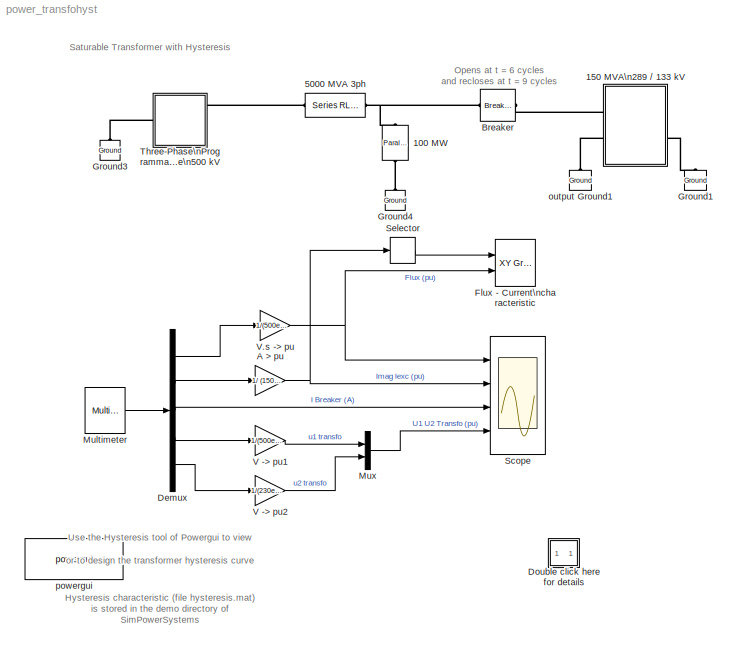
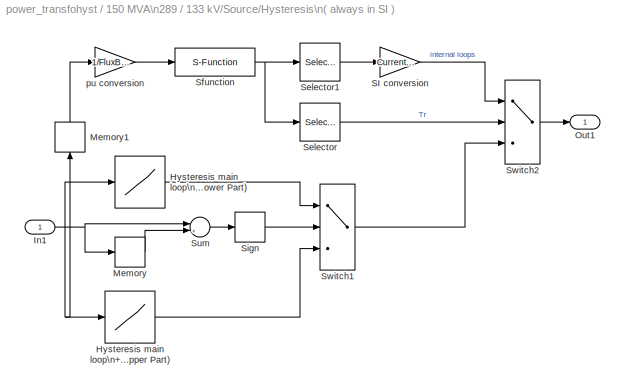
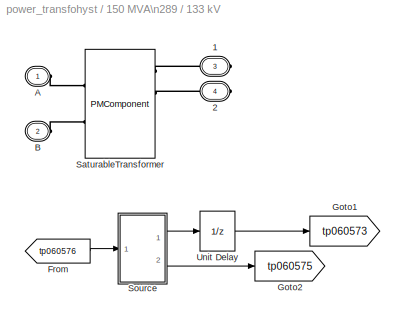
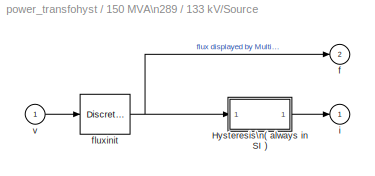
MODEL power_transfohyst
KIND model
BLOCK [Reference] 100 MW  REF=powerlib/Elements/Parallel RLC Load
  ActivePower = 100e6
  AttributesFormatString = \\n
  CapacitivePower = 0
  InductivePower = 0
  LConnTagsString = a
  LeftPortType = p1
  Measurements = None
  NominalFrequency = 60
  NominalVoltage = 500e3/sqrt(3)
  PhysicalDomain = powersysdomain
  Ports = [0, 0, 0, 0, 0, 1, 1]
  RConnTagsString = __new0
  RightPortType = p1
  SourceBlock = powerlib/Elements/Parallel RLC Load
  SourceType = Parallel RLC Load
  SubClassName = unknown
BLOCK [SubSystem] 150 MVA\n289 // 133 kV
  AttributesFormatString = \\n
  CopyFcn = powericon('psbloadfunction',gcb,'gotogotofrom','UpdateGotoTag');
  LoadFcn = try                                  \nset_param(gcb,'Linkstatus','restore')\nend
  MaskCallbackString = |||powericon('SaturableTransformerCback',gcb);||||powericon('SaturableTransformerCback',gcb);||||
  MaskDescription = Three windings linear transformer.
  MaskDisplay = plot(-85,-100,85,100,p1,p2,p3,p4,p5,p6,p7,p8);\ntext(-85,0, '1');\ntext(70,t1, '2');\ntext(70,-50, mot);
  MaskEnableString = on,on,on,on,on,on,on,on,on,on,on,on
  MaskHelp = web(psbhelp)
  MaskIconFrame = off
  MaskIconOpaque = on
  MaskIconRotate = port
  MaskIconUnits = autoscale
  MaskInitialization = block = gcb;\n[p1,p2,p3,p4,p5,p6,p7,p8,mot,t1]=powericon('SaturableTransformerIcon',ThreeWindings);\n%\npowerbase = NominalPower(1);\nwbase = 2*pi*NominalPower(2);\nvoltbase = Winding1(1);\nBaseCurrent = (powerbase/voltbase)*sqrt(2);\nBaseFlux = (voltbase/wbase)*sqrt(2);\nSaturation = [-Saturation(size(Saturation,1):-1:2,:) ; Saturation(2:size(Saturation,1),:)];\nSaturationCurrent = [Saturation(:,...<+688ch>
  MaskPromptString = Nominal power and frequency [Pn(VA) fn(Hz)]:|Winding 1 parameters [V1(Vrms) R1(pu) L1(pu)]:|Winding 2 parameters [V2(Vrms) R2(pu) L2(pu)]:|Three windings transformer|Winding 3 parameters [V3(Vrms) R3(pu) L3(pu)]:|Saturation characteristic [i1(pu) phi1(pu); i2 phi2; ...]:|Core loss resistance and initial flux [Rm(pu) phi0(pu)] or [Rm(pu)] only:|Simulate hysteresis|Hysteresis Data Mat file |Measurem...<+61ch>
  MaskSelfModifiable = on
  MaskStyleString = edit,edit,edit,checkbox,edit,edit,edit,checkbox,edit,popup(None|Winding voltages|Winding currents|Flux and excitation current ( Imag + IRm )|Flux and magnetization current ( Imag )|All measurements (V I Flux)),edit,edit
  MaskTabNameString = ,,,,,,,,,,,
  MaskToolTipString = on,on,on,on,on,on,on,on,on,on,on,on
  MaskTunableValueString = off,off,off,off,off,off,off,off,off,off,on,on
  MaskType = Saturable Transformer
  MaskValueString = [ 150e6 60 ]|[ 500e3/sqrt(3) 0.002 0.08 ]| [ 230e3/sqrt(3) 0.002 0.08]  |off| [ 230e3/sqrt(3) 0.002 0.08]  |[0 0;  0.0 0.85; 0.015 1.2;  0.03 1.35; 0.06 1.5; 0.09 1.56; 0.12 1.572]|[200 0]|on|'hysteresis'|All measurements (V I Flux)|-51.8986800285954|1
  MaskVarAliasString = ,,,,,,,,,,,
  MaskVariables = NominalPower=@1;Winding1=@2;Winding2=@3;ThreeWindings=@4;Winding3=@5;Saturation=@6;CoreLoss=@7;Hysteresis=@8;DataFile=@9;Measurements=@10;InitialFlux=@11;TransfoNumber=@12;
  MaskVisibilityString = on,on,on,on,off,off,on,on,on,on,off,off
  MinAlgLoopOccurrences = off
  Ports = [0, 0, 0, 0, 0, 2, 2]
  RTWSystemCode = Auto
  TreatAsAtomicUnit = off
BLOCK [PMIOPort] 150 MVA\n289 // 133 kV/1
  Port = 3
  Side = Right
BLOCK [PMIOPort] 150 MVA\n289 // 133 kV/2
  Port = 4
  Side = Right
BLOCK [PMIOPort] 150 MVA\n289 // 133 kV/A
  Port = 1
  Side = Left
BLOCK [PMIOPort] 150 MVA\n289 // 133 kV/B
  Port = 2
  Side = Left
BLOCK [From] 150 MVA\n289 // 133 kV/From
  CloseFcn = tagdialog Close
  DialogController = Simulink.DDGSource
  GotoTag = tp060576
BLOCK [Goto] 150 MVA\n289 // 133 kV/Goto1
  DialogController = Simulink.DDGSource
  GotoTag = tp060573
  TagVisibility = global
BLOCK [Goto] 150 MVA\n289 // 133 kV/Goto2
  DialogController = Simulink.DDGSource
  GotoTag = tp060575
  TagVisibility = global
BLOCK [PMComponent] 150 MVA\n289 // 133 kV/SaturableTransformer
  LConnTagsString = A|B
  LeftPortType = p1
  MaskIconFrame = on
  MaskIconOpaque = on
  MaskIconRotate = none
  MaskIconUnits = autoscale
  MaskType = InnerPowersysBlock
  PhysicalDomain = powersysdomain
  Ports = [0, 0, 0, 0, 0, 2, 4]
  RConnTagsString = 1|2|3|4
  RightPortType = p1
BLOCK [SubSystem] 150 MVA\n289 // 133 kV/Source
  AncestorBlock = powerlib_models/Discrete/hysteresis_transformer
  MaskCallbackString = |||||||||||||
  MaskEnableString = on,on,on,on,on,on,on,on,on,on,on,on,on,on
  MaskIconFrame = on
  MaskIconOpaque = on
  MaskIconRotate = none
  MaskIconUnits = autoscale
  MaskPromptString = SaturationFlux|SaturationCurrent|Initial Flux|FluxBase|CurrentBase|Tolerances|HT|UpperFlux|LowerFlux|Current|InitialSlope|Transfo Number|Ts|sfun_InitialFlux
  MaskStyleString = edit,edit,edit,edit,edit,edit,edit,edit,edit,edit,edit,edit,edit,edit
  MaskTabNameString = ,,,,,,,,,,,,,
  MaskToolTipString = on,on,on,on,on,on,on,on,on,on,on,on,on,on
  MaskTunableValueString = on,on,on,on,on,on,on,on,on,on,on,on,on,on
  MaskValueString = SaturationFlux|SaturationCurrent|InitialFlux|BaseFlux|BaseCurrent|Tolerances|HT|UpperFlux|LowerFlux|Current|InitialSlope|TransfoNumber|Ts|sfun_InitialFlux
  MaskVarAliasString = ,,,,,,,,,,,,,
  MaskVariables = SaturationFlux=@1;SaturationCurrent=@2;InitialFlux=@3;FluxBase=@4;CurrentBase=@5;Tolerances=@6;HT=@7;UpperFlux=@8;LowerFlux=@9;Current=@10;InitialSlope=@11;TransfoNumber=@12;Ts=@13;sfun_InitialFlux=@14;
  MaskVisibilityString = on,on,on,on,on,on,on,on,on,on,on,on,on,on
  MinAlgLoopOccurrences = off
  Ports = [1, 2]
  RTWSystemCode = Auto
  TreatAsAtomicUnit = off
BLOCK [SubSystem] 150 MVA\n289 // 133 kV/Source/Hysteresis\n( always in SI )
  MinAlgLoopOccurrences = off
  Ports = [1, 1]
  RTWSystemCode = Auto
  TreatAsAtomicUnit = off
BLOCK [Lookup] 150 MVA\n289 // 133 kV/Source/Hysteresis\n( always in SI )/Hysteresis main loop\n+\nSaturation.\n(Upper Part)
  DialogController = Simulink.DDGSource
  InputValues = UpperFlux
  OutputValues = Current
BLOCK [Lookup] 150 MVA\n289 // 133 kV/Source/Hysteresis\n( always in SI )/Hysteresis main loop\n+\nSaturation\n(Lower Part)
  DialogController = Simulink.DDGSource
  InputValues = LowerFlux
  OutputValues = Current
BLOCK [Inport] 150 MVA\n289 // 133 kV/Source/Hysteresis\n( always in SI )/In1
  IconDisplay = Port number
  LatchInput = off
  Port = 1
BLOCK [Memory] 150 MVA\n289 // 133 kV/Source/Hysteresis\n( always in SI )/Memory
BLOCK [Memory] 150 MVA\n289 // 133 kV/Source/Hysteresis\n( always in SI )/Memory1
BLOCK [Outport] 150 MVA\n289 // 133 kV/Source/Hysteresis\n( always in SI )/Out1
  BusOutputAsStruct = off
  IconDisplay = Port number
BLOCK [Gain] 150 MVA\n289 // 133 kV/Source/Hysteresis\n( always in SI )/SI conversion
  Gain = CurrentBase
BLOCK [Selector] 150 MVA\n289 // 133 kV/Source/Hysteresis\n( always in SI )/Selector
  Elements = 2
  InputPortWidth = 2
  Ports = [1, 1]
BLOCK [Selector] 150 MVA\n289 // 133 kV/Source/Hysteresis\n( always in SI )/Selector1
  InputPortWidth = 2
  Ports = [1, 1]
BLOCK [S-Function] 150 MVA\n289 // 133 kV/Source/Hysteresis\n( always in SI )/Sfunction
  FunctionName = sfun_hysteresis
  Parameters = sfun_InitialFlux,HT,TransfoNumber,Ts,Tolerances,InitialSlope
  Ports = [1, 1]
BLOCK [Signum] 150 MVA\n289 // 133 kV/Source/Hysteresis\n( always in SI )/Sign
BLOCK [Sum] 150 MVA\n289 // 133 kV/Source/Hysteresis\n( always in SI )/Sum
  IconShape = round
  Inputs = |+-
  Ports = [2, 1]
BLOCK [Switch] 150 MVA\n289 // 133 kV/Source/Hysteresis\n( always in SI )/Switch1
  SaturateOnIntegerOverflow = off
BLOCK [Switch] 150 MVA\n289 // 133 kV/Source/Hysteresis\n( always in SI )/Switch2
  SaturateOnIntegerOverflow = off
  Threshold = 1.5
BLOCK [Gain] 150 MVA\n289 // 133 kV/Source/Hysteresis\n( always in SI )/pu conversion
  Gain = 1/FluxBase
BLOCK [Outport] 150 MVA\n289 // 133 kV/Source/f
  BusOutputAsStruct = off
  IconDisplay = Port number
  InitialOutput = 0
  Port = 2
BLOCK [DiscreteIntegrator] 150 MVA\n289 // 133 kV/Source/fluxinit
  ExternalReset = none
  ICPrevOutput = DiscIntNeverNeededParam
  ICPrevScaledInput = DiscIntNeverNeededParam
  InitialCondition = InitialFlux
  InitialConditionSource = internal
  IntegratorMethod = Integration: Backward Euler
  Ports = [1, 1]
  SampleTime = Ts
BLOCK [Outport] 150 MVA\n289 // 133 kV/Source/i
  BusOutputAsStruct = off
  IconDisplay = Port number
  InitialOutput = 0
BLOCK [Inport] 150 MVA\n289 // 133 kV/Source/v
  IconDisplay = Port number
  LatchInput = off
  Port = 1
BLOCK [UnitDelay] 150 MVA\n289 // 133 kV/Unit Delay
  SampleTime = Ts
BLOCK [Reference] 5000 MVA 3ph  REF=powerlib/Elements/Series RLC Branch
  AttributesFormatString = \\n
  Capacitance = inf
  Inductance = 500e3^2/5000e6/(2*pi*60)
  LConnTagsString = __new0
  LeftPortType = p1
  Measurements = Branch current
  PhysicalDomain = powersysdomain
  Ports = [0, 0, 0, 0, 0, 1, 1]
  RConnTagsString = __new0
  Resistance = 500e3^2/5000e6/10
  RightPortType = p1
  SourceBlock = powerlib/Elements/Series RLC Branch
  SourceType = Series RLC Branch
  SubClassName = unknown
BLOCK [Gain] A > pu
  Gain = 1/ (150e6/(500e3/sqrt(3))*sqrt(2))
BLOCK [Reference] Breaker  REF=powerlib/Elements/Breaker
  AttributesFormatString = \\n
  BreakerResistance = 0.01
  External = off
  InitialState = 1
  Measurements = None
  Ports = [0, 0, 0, 0, 0, 1, 1]
  ShowPortLabels = on
  SnubberCapacitance = inf
  SnubberResistance = 1e7
  SourceBlock = powerlib/Elements/Breaker
  SourceType = Breaker
  SwitchingTimes = [ 6/60  9/60]
BLOCK [Demux] Demux
  Outputs = [1 2 1  1  1]
  Ports = [1, 5]
BLOCK [SubSystem] Double click here for details
  MaskDisplay = disp('?')
  MaskIconFrame = on
  MaskIconOpaque = on
  MaskIconRotate = none
  MaskIconUnits = autoscale
  MinAlgLoopOccurrences = off
  Ports = []
  RTWSystemCode = Auto
  TreatAsAtomicUnit = off
BLOCK [Reference] Flux - Current\ncharacteristic  REF=simulink/Sinks/XY Graph
  Ports = [2]
  ShowPortLabels = on
  SourceBlock = simulink/Sinks/XY Graph
  SourceType = XY scope.
  st = -1
  xmax = 0.05
  xmin = -0.05
  ymax = 1.5
  ymin = -1.5
BLOCK [Reference] Ground1  REF=powerlib/Elements/Ground
  AttributesFormatString = \\n
  LConnTagsString = a
  LeftPortType = p1
  PhysicalDomain = powersysdomain
  Ports = [0, 0, 0, 0, 0, 1]
  RightPortType = p1
  SourceBlock = powerlib/Elements/Ground
  SourceType = Ground
  SubClassName = unknown
BLOCK [Reference] Ground3  REF=powerlib/Elements/Ground
  AttributesFormatString = \\n
  LConnTagsString = a
  LeftPortType = p1
  PhysicalDomain = powersysdomain
  Ports = [0, 0, 0, 0, 0, 1]
  RightPortType = p1
  SourceBlock = powerlib/Elements/Ground
  SourceType = Ground
  SubClassName = unknown
BLOCK [Reference] Ground4  REF=powerlib/Elements/Ground
  AttributesFormatString = \\n
  LConnTagsString = a
  LeftPortType = p1
  PhysicalDomain = powersysdomain
  Ports = [0, 0, 0, 0, 0, 1]
  RightPortType = p1
  SourceBlock = powerlib/Elements/Ground
  SourceType = Ground
  SubClassName = unknown
BLOCK [Reference] Multimeter  REF=powerlib/Measurements/Multimeter
  AttributesFormatString = \\n
  AxesSetting = [0,0.1,-100,100]
  Display = 0
  Gain = [1 1 1 1 1 1]
  L = 8
  OutputType = Magnitude
  PSBOutputType = 1
  PSBequivalent = 1
  PhasorSimulation = off
  Ports = [0, 1]
  SavedBlockNames = -11
  ShowPortLabels = on
  SourceBlock = powerlib/Measurements/Multimeter
  SourceType = MultimeterPSB
  Tag = PoWeRsYsTeMmEaSuReMeNt
  sel = [8 7 6 4 1 2]
  yselected = {'Flux: 150 MVA 289 // 133 kV','Imag: 150 MVA 289 // 133 kV','Iexc: 150 MVA 289 // 133 kV','Iw1: 150 MVA 289 // 133 kV','Uw1: 150 MVA 289 // 133 kV','Uw2: 150 MVA 289 // 133 kV'};
BLOCK [Mux] Mux
  DisplayOption = bar
  Inputs = 2
  Ports = [2, 1]
BLOCK [Scope] Scope
  DataFormat = Array
  DeleteFcn = simscope BlockIsBeingDestroyed
  LimitDataPoints = off
  NumInputPorts = 4
  Ports = [4]
  PostSaveFcn = simscope Save
  SaveName = ScopeData1
  TimeRange = 0.14
  YMax = 2~0.0178204~600~2
  YMin = -2~-0.0153499~-200~-2
  ZoomMode = yonly
BLOCK [Selector] Selector
  InputPortWidth = 2
  Ports = [1, 1]
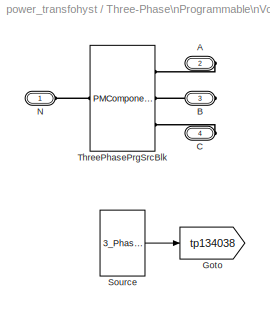
BLOCK [SubSystem] Three-Phase\nProgrammable\nVoltage Source\n500 kV
  AncestorBlock = powerlib/Electrical\nSources/Three-Phase\nProgrammable\nVoltage Source
  CopyFcn = powericon('psbloadfunction',gcb,'goto','UpdateGotoTag');
  MaskCallbackString = |powericon('ProgrammableVoltageSourceCback',gcb);|powericon('ProgrammableVoltageSourceCback',gcb);|||||||||powericon('ProgrammableVoltageSourceCback',gcb);|||
  MaskDescription = This block implements a three-phase zero-impedance voltage source. The common node (neutral) of the three sources is accessible via input 1 (N) of the block. Time variation for the amplitude, phase and frequency of the fundamental can be pre-programmed. In addition, two harmonics can be surimposed on the fundamental.\n\nNote: For  \"Phasor simulation\" , frequency variation and harmonic injection ...<+122ch>
  MaskDisplay = plot(-80,-50,80,50,[0,9,18,24,29,30,29,24,18,9,0,-9,-18,-24,-29,-30,-29,-24,-18,-9,0],[30,29,24,18,9,0,-9,-18,-24,-29,-30,-29,-24,-18,-9,0,9,18,24,29,30],[-50 -30],[0 0],[50,30],[0 0],[45 35 40 40 40],[15 15 15 20 10],[1 2 3 4 5 6 7 8 9 10 11 12 13 14 15 16 17 18 19 20 21].*1.5-15,[0,9,18,24,29,30,29,24,18,9,0,-9,-18,-24,-29,-30,-29,-24,-18,-9,0]./2.4)\n
  MaskEnableString = on,on,on,on,on,on,on,on,on,on,on,on,on,on,on
  MaskHelp = web(psbhelp)
  MaskIconFrame = on
  MaskIconOpaque = off
  MaskIconRotate = port
  MaskIconUnits = autoscale
  MaskInitialization = block=gcb;\n% Extra variable:\nSinglePhase=0;\n\n% Conversion of pos. seq.amplitude from Ph-Ph rms voltage to Phase-gnd peak\nMagnitudeVps = PositiveSequence(1)*sqrt(2/3);\nPhaseVps = PositiveSequence(2);\nFreqVps = PositiveSequence(3);\n\n% Conversion of harmonic amplitudes from pu to Phase-gnd peak volt\nHarmonicA(2) = HarmonicA(2)*MagnitudeVps;\nHarmonicB(2) = HarmonicB(2)*MagnitudeVps;\n\n% Co...<+1093ch>
  MaskPromptString = Positive-sequence: [ Amplitude(Vrms Ph-Ph)  Phase(deg.)   Freq. (Hz) ]|Time variation of:|Type of variation:|Step magnitude (pu, Hz or deg.):|Rate of change (pu/s, Hz/s or deg/s):|Amplitude of the modulation (pu, Hz or deg.):|Frequency of the modulation(Hz):|Variation timing (s) : [ Start   End ]|Variation on phase A only|Amplitude values (pu):|Time values:|Fundamental and/or Harmonic generation:|...<+156ch>
  MaskSelfModifiable = on
  MaskStyleString = edit,popup(None|Amplitude|Phase|Frequency),popup(Step|Ramp|Modulation|Table of time-amplitude pairs),edit,edit,edit,edit,edit,checkbox,edit,edit,checkbox,edit,edit,edit
  MaskTabNameString = ,,,,,,,,,,,,,,
  MaskToolTipString = on,on,on,on,on,on,on,on,on,on,on,on,on,on,on
  MaskTunableValueString = on,on,on,on,on,on,on,on,on,on,on,on,on,on,on
  MaskType = Three-Phase Programmable Voltage Source
  MaskValueString = [0.8*500e3  90  60]|Amplitude|Step|0.375|10|0.3|2|[0.05 1]|off|[1 0.8 1.2 1.0]|[0 0.1 0.15 0.2]|off|[3 0.2 -25 0]|[2 0.15 35 2]|[0.05  3]
  MaskVarAliasString = ,,,,,,,,,,,,,,
  MaskVariables = PositiveSequence=@1;VariationEntity=@2;VariationType=@3;VariationStep=@4;VariationRate=@5;VariationMagnitude=@6;VariationFrequency=@7;VariationTiming=@8;VariationPhaseA=@9;Amplitudes=@10;TimeValues=@11;HarmonicGeneration=@12;HarmonicA=@13;HarmonicB=@14;Timing=@15;
  MaskVisibilityString = on,on,on,on,off,off,off,on,off,off,off,on,off,off,off
  MinAlgLoopOccurrences = off
  Ports = [0, 0, 0, 0, 0, 1, 3]
  RTWSystemCode = Auto
  TreatAsAtomicUnit = off
BLOCK [PMIOPort] Three-Phase\nProgrammable\nVoltage Source\n500 kV/A
  Port = 2
  Side = Right
BLOCK [PMIOPort] Three-Phase\nProgrammable\nVoltage Source\n500 kV/B
  Port = 3
  Side = Right
BLOCK [PMIOPort] Three-Phase\nProgrammable\nVoltage Source\n500 kV/C
  Port = 4
  Side = Right
BLOCK [Goto] Three-Phase\nProgrammable\nVoltage Source\n500 kV/Goto
  DialogController = Simulink.DDGSource
  GotoTag = tp134038
  TagVisibility = global
BLOCK [PMIOPort] Three-Phase\nProgrammable\nVoltage Source\n500 kV/N
  Port = 1
  Side = Left
BLOCK [Reference] Three-Phase\nProgrammable\nVoltage Source\n500 kV/Source  REF=powerlib_models/Discrete/3_Phase_Prog_Source
  DataTypeOverride = UseLocalSettings
  MinMaxOverflowLogging = UseLocalSettings
  Permissions = ReadWrite
  Ports = [0, 1]
  RTWFcnNameOpts = Auto
  RTWFileNameOpts = Auto
  RTWSystemCode = Auto
  ShowPortLabels = on
  SimViewingDevice = off
  SourceBlock = powerlib_models/Discrete/3_Phase_Prog_Source
  SourceType = SubSystem
  TreatAsAtomicUnit = off
BLOCK [PMComponent] Three-Phase\nProgrammable\nVoltage Source\n500 kV/ThreePhasePrgSrcBlk
  LConnTagsString = N
  LeftPortType = p1
  MaskIconFrame = on
  MaskIconOpaque = on
  MaskIconRotate = none
  MaskIconUnits = autoscale
  MaskType = InnerPowersysBlock
  PhysicalDomain = powersysdomain
  Ports = [0, 0, 0, 0, 0, 1, 3]
  RConnTagsString = A|B|C
  RightPortType = p1
BLOCK [Gain] V -> pu1
  Gain = 1/(500e3/sqrt(3)*sqrt(2))
BLOCK [Gain] V -> pu2
  Gain = 1/(230e3/sqrt(3)*sqrt(2))
BLOCK [Gain] V.s -> pu
  Gain = 1/(500e3/sqrt(3)*sqrt(2)/(2*pi*60))
BLOCK [Reference] output Ground1  REF=powerlib/Elements/Ground
  AttributesFormatString = \\n
  LConnTagsString = a
  LeftPortType = p1
  PhysicalDomain = powersysdomain
  Ports = [0, 0, 0, 0, 0, 1]
  RightPortType = p1
  SourceBlock = powerlib/Elements/Ground
  SourceType = Ground
  SubClassName = unknown
BLOCK [Reference] powergui  REF=powerlib/powergui
  DisplayStyle = off
  Frange = [0:2:500]
  FreqAxis = off
  MaxFrequency = 1000
  Ports = []
  Priority = 2
  RmsSteady = 1
  ShowPortLabels = on
  SourceBlock = powerlib/powergui
  SourceType = PSB option menu block
  StartTime = 0.0
  Ts = 25e-6
  Xlog = on
  Ylog = off
  ZoomFFT = on
  cycles = 1
  display = off
  echomessages = off
  frequency = 60
  frequencyindice = 1
  frequencyindicesteady = 1
  fundamental = 60
  methode = off
  save = off
  variable = ZData
ANNOTATION (root): Hysteresis characteristic (file hysteresis.mat) \nis stored in the demo directory of \nSimPowerSystems
ANNOTATION (root): Opens at t = 6 cycles\nand recloses at t = 9 cycles\n
ANNOTATION (root): Saturable Transformer with Hysteresis
ANNOTATION (root): Use the Hysteresis tool of Powergui to view\nor to design the transformer hysteresis curve
ANNOTATION Double click here for details: 1) Simulation of saturation with hysteresis
ANNOTATION Double click here for details: 2) Simulation of saturation with a piecewise nonlinear characteristic
ANNOTATION Double click here for details: At first zero crossing after the breaker opening order, the current is interrupted, and a flux of 0.84 pu stays trapped in the transformer core.
ANNOTATION Double click here for details: Circuit Description
ANNOTATION Double click here for details: Demonstration
ANNOTATION Double click here for details: From 0 to 0.05 sec:
ANNOTATION Double click here for details: From 0.05 to 0.1 sec:
ANNOTATION Double click here for details: From 0.1 to 0.15 sec:
ANNOTATION Double click here for details: From 0.15 to 0.2 sec :
ANNOTATION Double click here for details: One phase of a three-phase transformer is connected on a 500 kV, 5000 MVA network. The transformer is rated 500 kV/230 kV, 450 MVA (150 MVA per phase).\nThe flux-current saturation characteristic of the transformer is modelled with the hysteresis or with a simple piecewise nonlinear characteristic.\n\nA Thrre-Phase Programmable Voltagge Source is used to vary the internal voltage of the equivalent...<+965ch>
ANNOTATION Double click here for details: Open the transformer menu and deselect 'Simulate hysteresis'. The saturation will now be simulated by a piecewise nonlinear single-valued characteristic\ndefined by 7 points. Current/Flux pairs (in pu) are: [0 0; 0.0 0.85; 0.015 1.2; 0.03 1.35; 0.06 1.5; 0.09 1.56; 0.12 1.572].\nThe saturated region is the same, but the hysteresis loop is not simulated. Note that this single valued characteristics...<+143ch>
ANNOTATION Double click here for details: Open the transformer menu and select the 'Simulate hysteresis' check box.\nUsing the 'Hysteresis design' tool of the Powergui, load the hysteresis characteristic (load file 'hysteresis.mat').\nNotice that flux and excitation current are displayed in pu. Using the 'Parameter units' popu menu, you can convert the pu units to SI units.\nThe saturation characteristics consists of two regions:\n 1) The...<+736ch>
ANNOTATION Double click here for details: S. Casoria (Hydro-Quebec) and P. Brunelle (TransEnergie)
ANNOTATION Double click here for details: The breaker is reclosed at t = 9 cycles, at a zero crossing of source voltage, producing an additional flux offset of approximatlely 1 pu.\nThe peak flux now reaches 1.85 pu, driving the transformer into the saturated region. Peak excitation current now reaches 0.81 pu.
ANNOTATION Double click here for details: This demonstration illustrates simulation of hystersis in a saturable transformer
ANNOTATION Double click here for details: Voltage and flux peak values are at 0.8 pu. Notice typical square wave of magnetization current. \nAs no remanent flux was specified, magnetization current and flux are symetrical. Flux travels on inner loops (inside the main loop).
ANNOTATION Double click here for details: Voltage is 1.1 pu. Flux now reaches approximately +1.1pu. A slight flux asymetry is produced at voltage change.\nand the flux which varies between +1.14 pu and -1.05 pu now travels on the main loop.\nCurrent pulses appear on the magnetization current (yellow trace, Imag), indicating begining of saturation.
LINE 150 MVA\n289 // 133 kV/From:1 -> 150 MVA\n289 // 133 kV/Source:1
LINE 150 MVA\n289 // 133 kV/Source/Hysteresis\n( always in SI )/Hysteresis main loop\n+\nSaturation.\n(Upper Part):1 -> 150 MVA\n289 // 133 kV/Source/Hysteresis\n( always in SI )/Switch1:3
LINE 150 MVA\n289 // 133 kV/Source/Hysteresis\n( always in SI )/Hysteresis main loop\n+\nSaturation\n(Lower Part):1 -> 150 MVA\n289 // 133 kV/Source/Hysteresis\n( always in SI )/Switch1:1
NET 150 MVA\n289 // 133 kV/Source/Hysteresis\n( always in SI )/In1:1 -> 150 MVA\n289 // 133 kV/Source/Hysteresis\n( always in SI )/Hysteresis main loop\n+\nSaturation.\n(Upper Part):1, 150 MVA\n289 // 133 kV/Source/Hysteresis\n( always in SI )/Hysteresis main loop\n+\nSaturation\n(Lower Part):1, 150 MVA\n289 // 133 kV/Source/Hysteresis\n( always in SI )/Memory1:1, 150 MVA\n289 // 133 kV/Source/Hysteresis\n( always in SI )/Memory:1, 150 MVA\n289 // 133 kV/Source/Hysteresis\n( always in SI )/Sum:1
LINE 150 MVA\n289 // 133 kV/Source/Hysteresis\n( always in SI )/Memory1:1 -> 150 MVA\n289 // 133 kV/Source/Hysteresis\n( always in SI )/pu conversion:1
LINE 150 MVA\n289 // 133 kV/Source/Hysteresis\n( always in SI )/Memory:1 -> 150 MVA\n289 // 133 kV/Source/Hysteresis\n( always in SI )/Sum:2
LINE 150 MVA\n289 // 133 kV/Source/Hysteresis\n( always in SI )/SI conversion:1 -> 150 MVA\n289 // 133 kV/Source/Hysteresis\n( always in SI )/Switch2:1
LINE 150 MVA\n289 // 133 kV/Source/Hysteresis\n( always in SI )/Selector1:1 -> 150 MVA\n289 // 133 kV/Source/Hysteresis\n( always in SI )/SI conversion:1
LINE 150 MVA\n289 // 133 kV/Source/Hysteresis\n( always in SI )/Selector:1 -> 150 MVA\n289 // 133 kV/Source/Hysteresis\n( always in SI )/Switch2:2
NET 150 MVA\n289 // 133 kV/Source/Hysteresis\n( always in SI )/Sfunction:1 -> 150 MVA\n289 // 133 kV/Source/Hysteresis\n( always in SI )/Selector1:1, 150 MVA\n289 // 133 kV/Source/Hysteresis\n( always in SI )/Selector:1
LINE 150 MVA\n289 // 133 kV/Source/Hysteresis\n( always in SI )/Sign:1 -> 150 MVA\n289 // 133 kV/Source/Hysteresis\n( always in SI )/Switch1:2
LINE 150 MVA\n289 // 133 kV/Source/Hysteresis\n( always in SI )/Sum:1 -> 150 MVA\n289 // 133 kV/Source/Hysteresis\n( always in SI )/Sign:1
LINE 150 MVA\n289 // 133 kV/Source/Hysteresis\n( always in SI )/Switch1:1 -> 150 MVA\n289 // 133 kV/Source/Hysteresis\n( always in SI )/Switch2:3
LINE 150 MVA\n289 // 133 kV/Source/Hysteresis\n( always in SI )/Switch2:1 -> 150 MVA\n289 // 133 kV/Source/Hysteresis\n( always in SI )/Out1:1
LINE 150 MVA\n289 // 133 kV/Source/Hysteresis\n( always in SI )/pu conversion:1 -> 150 MVA\n289 // 133 kV/Source/Hysteresis\n( always in SI )/Sfunction:1
LINE 150 MVA\n289 // 133 kV/Source/Hysteresis\n( always in SI ):1 -> 150 MVA\n289 // 133 kV/Source/i:1
NET 150 MVA\n289 // 133 kV/Source/fluxinit:1 -> 150 MVA\n289 // 133 kV/Source/Hysteresis\n( always in SI ):1, 150 MVA\n289 // 133 kV/Source/f:1
LINE 150 MVA\n289 // 133 kV/Source/v:1 -> 150 MVA\n289 // 133 kV/Source/fluxinit:1
LINE 150 MVA\n289 // 133 kV/Source:1 -> 150 MVA\n289 // 133 kV/Unit Delay:1
LINE 150 MVA\n289 // 133 kV/Source:2 -> 150 MVA\n289 // 133 kV/Goto2:1
LINE 150 MVA\n289 // 133 kV/Unit Delay:1 -> 150 MVA\n289 // 133 kV/Goto1:1
NET A > pu:1 -> Scope:2, Selector:1
LINE Demux:1 -> V.s -> pu:1
LINE Demux:2 -> A > pu:1
LINE Demux:3 -> Scope:3
LINE Demux:4 -> V -> pu1:1
LINE Demux:5 -> V -> pu2:1
LINE Multimeter:1 -> Demux:1
LINE Mux:1 -> Scope:4
LINE Selector:1 -> Flux - Current\ncharacteristic:1
LINE Three-Phase\nProgrammable\nVoltage Source\n500 kV/Source:1 -> Three-Phase\nProgrammable\nVoltage Source\n500 kV/Goto:1
LINE V -> pu1:1 -> Mux:1
LINE V -> pu2:1 -> Mux:2
NET V.s -> pu:1 -> Flux - Current\ncharacteristic:2, Scope:1
PNET net1: 100 MW:LConn1 -- 5000 MVA 3ph:RConn1 -- Breaker:LConn1
PLINE 100 MW:RConn1 -- Ground4:LConn1
PLINE 150 MVA\n289 // 133 kV/1:RConn1 -- 150 MVA\n289 // 133 kV/SaturableTransformer:RConn1
PLINE 150 MVA\n289 // 133 kV/2:RConn1 -- 150 MVA\n289 // 133 kV/SaturableTransformer:RConn2
PLINE 150 MVA\n289 // 133 kV/A:RConn1 -- 150 MVA\n289 // 133 kV/SaturableTransformer:LConn1
PLINE 150 MVA\n289 // 133 kV/B:RConn1 -- 150 MVA\n289 // 133 kV/SaturableTransformer:LConn2
PLINE 150 MVA\n289 // 133 kV:LConn1 -- Breaker:RConn1
PLINE 150 MVA\n289 // 133 kV:LConn2 -- output Ground1:LConn1
PLINE 150 MVA\n289 // 133 kV:RConn2 -- Ground1:LConn1
PLINE 5000 MVA 3ph:LConn1 -- Three-Phase\nProgrammable\nVoltage Source\n500 kV:RConn1
PLINE Ground3:LConn1 -- Three-Phase\nProgrammable\nVoltage Source\n500 kV:LConn1
PLINE Three-Phase\nProgrammable\nVoltage Source\n500 kV/A:RConn1 -- Three-Phase\nProgrammable\nVoltage Source\n500 kV/ThreePhasePrgSrcBlk:RConn1
PLINE Three-Phase\nProgrammable\nVoltage Source\n500 kV/B:RConn1 -- Three-Phase\nProgrammable\nVoltage Source\n500 kV/ThreePhasePrgSrcBlk:RConn2
PLINE Three-Phase\nProgrammable\nVoltage Source\n500 kV/C:RConn1 -- Three-Phase\nProgrammable\nVoltage Source\n500 kV/ThreePhasePrgSrcBlk:RConn3
PLINE Three-Phase\nProgrammable\nVoltage Source\n500 kV/N:RConn1 -- Three-Phase\nProgrammable\nVoltage Source\n500 kV/ThreePhasePrgSrcBlk:LConn1
note: NET lines group one-source signal fan-out (src -> all destinations, sorted); 1:1 wires keep LINE; PNET lines group multi-terminal physical nets as a canonical sorted terminal list (undirected conserving connections); 2-terminal nets keep the pairwise PLINE form
